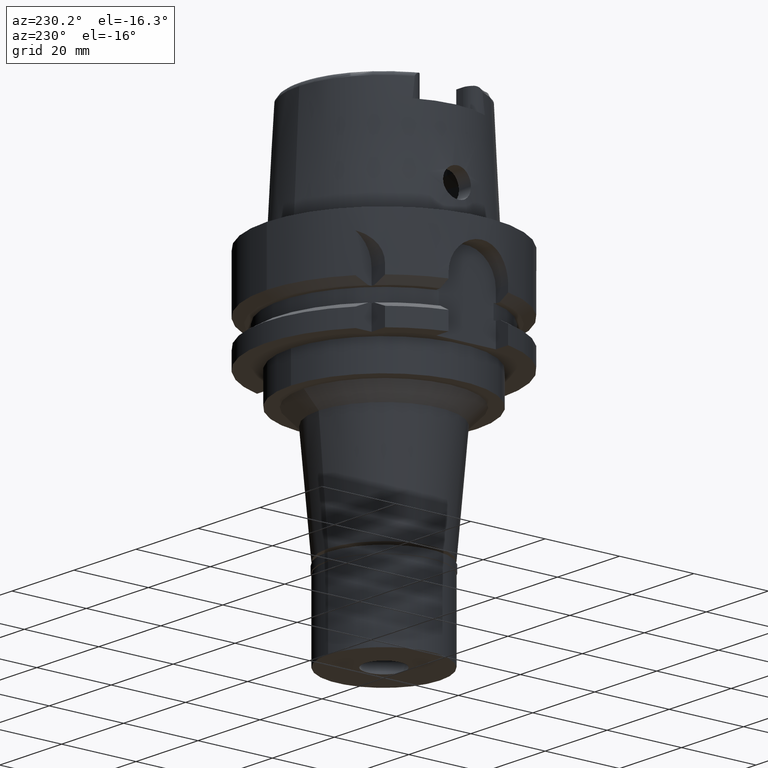
[diagram: clean part render]
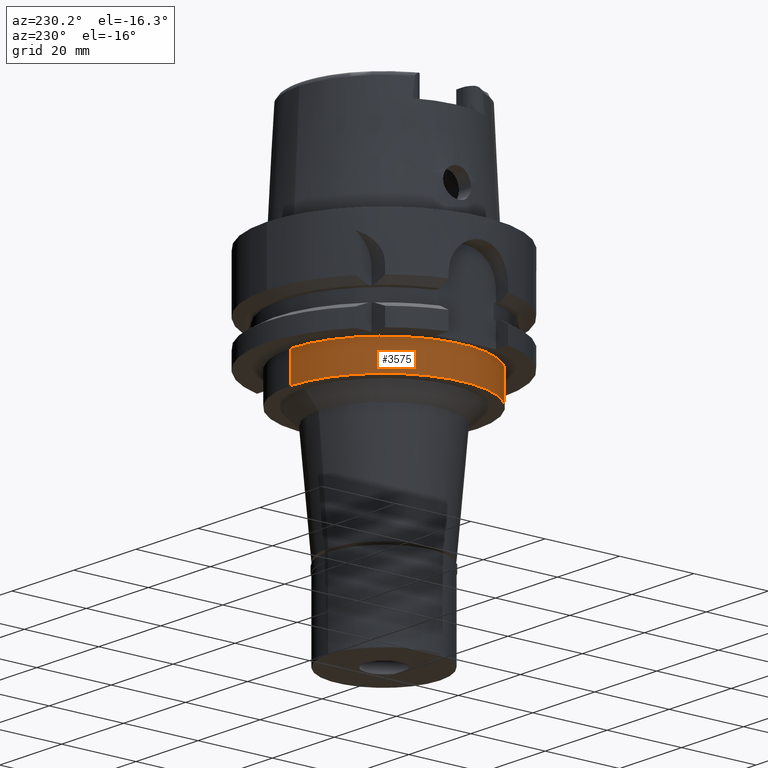
[diagram: same view with one face highlighted and labeled with its STEP entity id]
A machine part, auxiliary view. The second image highlights one B-rep face of the part: STEP entity #3575.
In plain terms, the highlighted cylindrical surface (partial cylindrical patch) has radius 25 mm, axis along (0, 0, 1).
Its self-contained STEP definition (entity closure, byte-faithful):
#184 = EDGE_CURVE ( 'NONE', #2660, #2309, #2746, .T. ) ;
#584 = CARTESIAN_POINT ( 'NONE',  ( 0.0000000000000000000, 0.0000000000000000000, -26.00000000000000000 ) ) ;
#718 = DIRECTION ( 'NONE',  ( 0.0000000000000000000, 1.000000000000000000, 0.0000000000000000000 ) ) ;
#764 = CARTESIAN_POINT ( 'NONE',  ( 0.0000000000000000000, 25.00000000000000000, -26.00000000000000000 ) ) ;
#809 = DIRECTION ( 'NONE',  ( 0.0000000000000000000, 1.000000000000000000, 0.0000000000000000000 ) ) ;
#978 = CARTESIAN_POINT ( 'NONE',  ( 0.0000000000000000000, 25.00000000000000000, -34.00000000000000000 ) ) ;
#1016 = VERTEX_POINT ( 'NONE', #764 ) ;
#1374 = CARTESIAN_POINT ( 'NONE',  ( 0.0000000000000000000, -25.00000000000000000, -26.00000000000000000 ) ) ;
#1845 = VECTOR ( 'NONE', #2605, 1000.000000000000000 ) ;
#2102 = EDGE_CURVE ( 'NONE', #4966, #1016, #3479, .T. ) ;
#2309 = VERTEX_POINT ( 'NONE', #4635 ) ;
#2339 = DIRECTION ( 'NONE',  ( 0.0000000000000000000, 0.0000000000000000000, -1.000000000000000000 ) ) ;
#2458 = ORIENTED_EDGE ( 'NONE', *, *, #184, .T. ) ;
#2470 = CARTESIAN_POINT ( 'NONE',  ( 0.0000000000000000000, 25.00000000000000000, -26.00000000000000000 ) ) ;
#2605 = DIRECTION ( 'NONE',  ( 0.0000000000000000000, 0.0000000000000000000, -1.000000000000000000 ) ) ;
#2642 = AXIS2_PLACEMENT_3D ( 'NONE', #4606, #5434, #718 ) ;
#2660 = VERTEX_POINT ( 'NONE', #978 ) ;
#2664 = VECTOR ( 'NONE', #4516, 1000.000000000000000 ) ;
#2746 = CIRCLE ( 'NONE', #3483, 25.00000000000000000 ) ;
#2875 = CYLINDRICAL_SURFACE ( 'NONE', #2642, 25.00000000000000000 ) ;
#2915 = ORIENTED_EDGE ( 'NONE', *, *, #4312, .F. ) ;
#2969 = CARTESIAN_POINT ( 'NONE',  ( 0.0000000000000000000, 0.0000000000000000000, -34.00000000000000000 ) ) ;
#3359 = EDGE_LOOP ( 'NONE', ( #2458, #2915, #3674, #4791 ) ) ;
#3401 = CARTESIAN_POINT ( 'NONE',  ( 0.0000000000000000000, -25.00000000000000000, -26.00000000000000000 ) ) ;
#3479 = CIRCLE ( 'NONE', #4013, 25.00000000000000000 ) ;
#3483 = AXIS2_PLACEMENT_3D ( 'NONE', #2969, #4329, #809 ) ;
#3575 = ADVANCED_FACE ( 'NONE', ( #3695 ), #2875, .T. ) ;
#3674 = ORIENTED_EDGE ( 'NONE', *, *, #2102, .T. ) ;
#3695 = FACE_OUTER_BOUND ( 'NONE', #3359, .T. ) ;
#4013 = AXIS2_PLACEMENT_3D ( 'NONE', #584, #2339, #5326 ) ;
#4270 = LINE ( 'NONE', #3401, #1845 ) ;
#4312 = EDGE_CURVE ( 'NONE', #4966, #2309, #4270, .T. ) ;
#4329 = DIRECTION ( 'NONE',  ( 0.0000000000000000000, 0.0000000000000000000, 1.000000000000000000 ) ) ;
#4516 = DIRECTION ( 'NONE',  ( 0.0000000000000000000, 0.0000000000000000000, -1.000000000000000000 ) ) ;
#4606 = CARTESIAN_POINT ( 'NONE',  ( 0.0000000000000000000, 0.0000000000000000000, 0.0000000000000000000 ) ) ;
#4635 = CARTESIAN_POINT ( 'NONE',  ( 0.0000000000000000000, -25.00000000000000000, -34.00000000000000000 ) ) ;
#4791 = ORIENTED_EDGE ( 'NONE', *, *, #5246, .T. ) ;
#4949 = LINE ( 'NONE', #2470, #2664 ) ;
#4966 = VERTEX_POINT ( 'NONE', #1374 ) ;
#5246 = EDGE_CURVE ( 'NONE', #1016, #2660, #4949, .T. ) ;
#5326 = DIRECTION ( 'NONE',  ( 0.0000000000000000000, -1.000000000000000000, 0.0000000000000000000 ) ) ;
#5434 = DIRECTION ( 'NONE',  ( 0.0000000000000000000, 0.0000000000000000000, 1.000000000000000000 ) ) ;